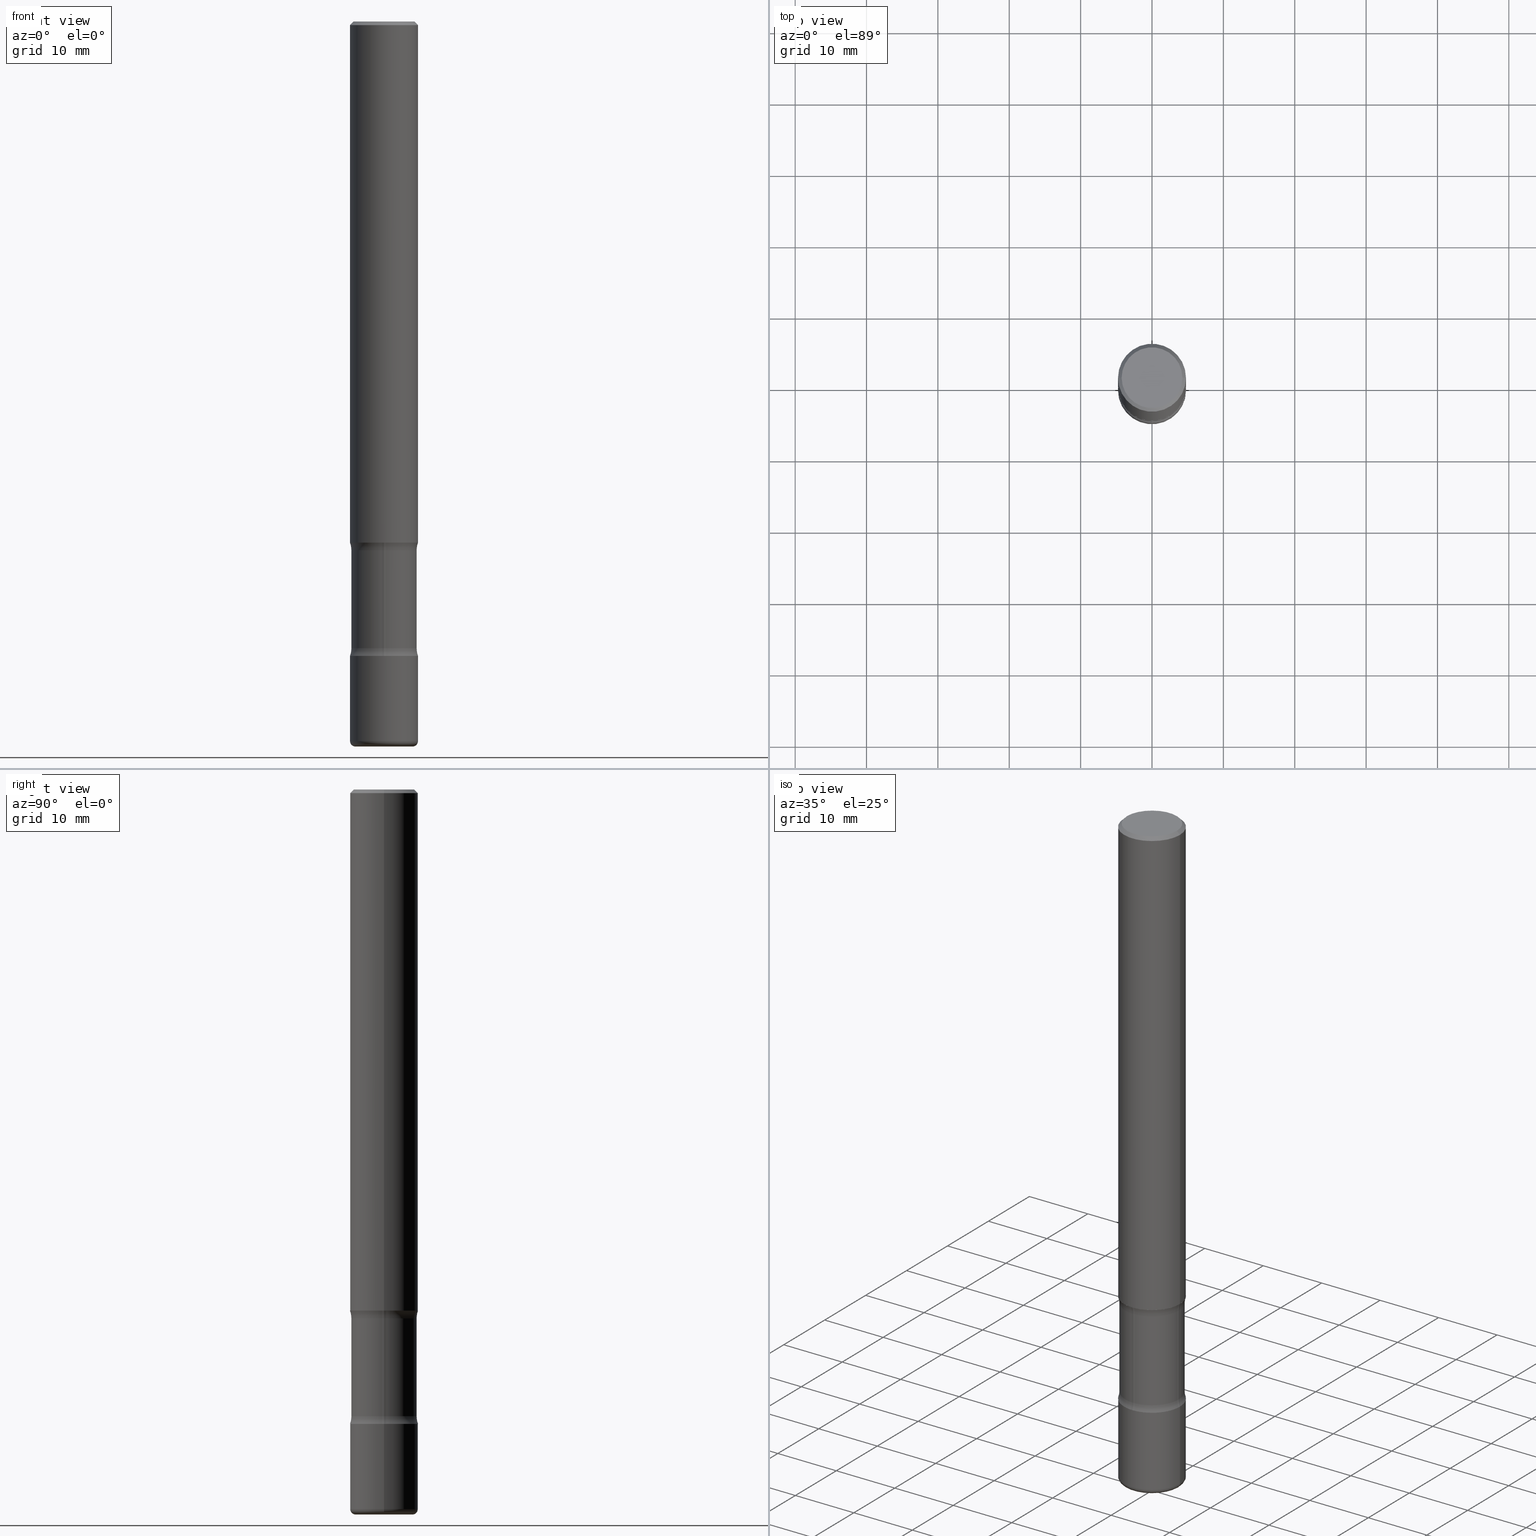
[diagram: canonical four-view strip — front | top / right | iso, engineering-drawing reading convention]
A machine part, canonical four-view strip (front | top / right | iso — engineering-drawing reading convention). The complete STEP part file that produces these views, byte-faithful:
ISO-10303-21;
HEADER;
FILE_DESCRIPTION (( 'STEP AP203' ),
    '1' );
FILE_NAME ('32826.STEP',
    '2023-03-11T07:04:34',
    ( '' ),
    ( '' ),
    'SwSTEP 2.0',
    'SolidWorks 2022',
    '' );
FILE_SCHEMA (( 'CONFIG_CONTROL_DESIGN' ));
ENDSEC;

DATA;
#1 = DIRECTION ( 'NONE',  ( 1.000000000000000000, -6.982962677686259611E-15, 0.000000000000000000 ) ) ;
#2 = CIRCLE ( 'NONE', #715, 0.1799999999999999933 ) ;
#3 = DIRECTION ( 'NONE',  ( -2.445468806185136597E-29, 3.491481338843145583E-15, 1.000000000000000000 ) ) ;
#4 = AXIS2_PLACEMENT_3D ( 'NONE', #59, #52, #310 ) ;
#5 = ADVANCED_BREP_SHAPE_REPRESENTATION ( '32826', ( #749, #210, #747, #500, #214 ), #727 ) ;
#6 = DIRECTION ( 'NONE',  ( -2.445468806185136597E-29, 3.491481338843145583E-15, 1.000000000000000000 ) ) ;
#7 = CARTESIAN_POINT ( 'NONE',  ( 1.169646248512448215E-15, 0.1674999999999997879, -5.848231242562260795E-16 ) ) ;
#8 = DIRECTION ( 'NONE',  ( -2.445468806185136597E-29, 3.491481338843145583E-15, 1.000000000000000000 ) ) ;
#9 = PLANE ( 'NONE',  #560 ) ;
#10 = DIRECTION ( 'NONE',  ( 1.000000000000000000, -6.982962677686266711E-15, 4.876176775795935793E-29 ) ) ;
#11 = CLOSED_SHELL ( 'NONE', ( #110, #657, #244, #693, #322, #567, #202, #53 ) ) ;
#12 = DIRECTION ( 'NONE',  ( -1.000000000000000000, 6.982962677686265922E-15, -4.883557194083112340E-29 ) ) ;
#13 = CARTESIAN_POINT ( 'NONE',  ( 7.030722817782267716E-29, -1.003800884917404311E-14, -2.875000000000000000 ) ) ;
#14 = LOCAL_TIME ( 2, 4, 34.00000000000000000, #33 ) ;
#15 = CARTESIAN_POINT ( 'NONE',  ( -0.1875000000000000278, -1.170841517102895815E-14, -3.500000000000000000 ) ) ;
#16 = ADVANCED_FACE ( 'NONE', ( #692 ), #182, .F. ) ;
#17 = DIRECTION ( 'NONE',  ( 1.000000000000000000, -6.982962677686266711E-15, 4.883557194083112340E-29 ) ) ;
#18 = ORIENTED_EDGE ( 'NONE', *, *, #454, .F. ) ;
#19 = PERSON_AND_ORGANIZATION ( #597, #170 ) ;
#20 = CARTESIAN_POINT ( 'NONE',  ( 0.1575000000000000289, -1.496099753694287407E-14, -3.970000000000000195 ) ) ;
#21 = DIRECTION ( 'NONE',  ( -2.445468806185136597E-29, 3.491481338843145583E-15, 1.000000000000000000 ) ) ;
#22 = VERTEX_POINT ( 'NONE', #754 ) ;
#23 = DIRECTION ( 'NONE',  ( 1.000000000000000000, -6.982962677686277755E-15, 0.000000000000000000 ) ) ;
#24 = CARTESIAN_POINT ( 'NONE',  ( 0.1874999999999999722, -1.352949018801718277E-14, -3.500000000000000000 ) ) ;
#25 = AXIS2_PLACEMENT_3D ( 'NONE', #73, #147, #31 ) ;
#26 = AXIS2_PLACEMENT_3D ( 'NONE', #250, #311, #744 ) ;
#27 = EDGE_LOOP ( 'NONE', ( #734, #284 ) ) ;
#28 = EDGE_CURVE ( 'NONE', #771, #273, #242, .T. ) ;
#29 = VECTOR ( 'NONE', #523, 39.37007874015748143 ) ;
#30 = DIRECTION ( 'NONE',  ( -2.445468806185136597E-29, 3.491481338843145583E-15, 1.000000000000000000 ) ) ;
#31 = DIRECTION ( 'NONE',  ( 1.000000000000000000, -6.982962677686263555E-15, 4.883557194083111219E-29 ) ) ;
#32 = EDGE_LOOP ( 'NONE', ( #156, #492, #680, #246 ) ) ;
#33 = COORDINATED_UNIVERSAL_TIME_OFFSET ( 5, 0, .BEHIND. ) ;
#34 = FACE_OUTER_BOUND ( 'NONE', #51, .T. ) ;
#35 = ORIENTED_EDGE ( 'NONE', *, *, #46, .T. ) ;
#36 = EDGE_CURVE ( 'NONE', #278, #609, #255, .T. ) ;
#37 = DIRECTION ( 'NONE',  ( 6.860497997771529985E-15, 1.000000000000000000, 0.000000000000000000 ) ) ;
#38 = VERTEX_POINT ( 'NONE', #699 ) ;
#39 = AXIS2_PLACEMENT_3D ( 'NONE', #381, #634, #270 ) ;
#40 = VECTOR ( 'NONE', #272, 39.37007874015748143 ) ;
#41 = CIRCLE ( 'NONE', #401, 0.1250000000000000555 ) ;
#42 = CIRCLE ( 'NONE', #626, 0.1799999999999999378 ) ;
#43 = FACE_OUTER_BOUND ( 'NONE', #618, .T. ) ;
#44 = ORIENTED_EDGE ( 'NONE', *, *, #575, .F. ) ;
#45 = ORIENTED_EDGE ( 'NONE', *, *, #732, .T. ) ;
#46 = EDGE_CURVE ( 'NONE', #116, #729, #624, .T. ) ;
#47 = DIRECTION ( 'NONE',  ( 6.982962677686265133E-15, 1.000000000000000000, -3.035386659626959526E-15 ) ) ;
#48 = ORIENTED_EDGE ( 'NONE', *, *, #409, .T. ) ;
#49 = CARTESIAN_POINT ( 'NONE',  ( 0.1875000000000000278, -1.309305502066175008E-15, 9.142831454617381013E-30 ) ) ;
#50 = CC_DESIGN_PERSON_AND_ORGANIZATION_ASSIGNMENT ( #496, #350, ( #723 ) ) ;
#51 = EDGE_LOOP ( 'NONE', ( #430, #513, #164, #746 ) ) ;
#52 = DIRECTION ( 'NONE',  ( 2.448389794294358426E-29, -3.487298317618421426E-15, -1.000000000000000000 ) ) ;
#53 = ADVANCED_FACE ( 'NONE', ( #757 ), #451, .T. ) ;
#54 = TOROIDAL_SURFACE ( 'NONE', #545, 0.3049999999999999933, 0.1250000000000000278 ) ;
#55 = AXIS2_PLACEMENT_3D ( 'NONE', #666, #603, #143 ) ;
#56 = CIRCLE ( 'NONE', #294, 0.1250000000000000000 ) ;
#57 = DIRECTION ( 'NONE',  ( 2.448389794294358146E-29, -3.487298317618421426E-15, -1.000000000000000000 ) ) ;
#58 = ORIENTED_EDGE ( 'NONE', *, *, #28, .F. ) ;
#59 = CARTESIAN_POINT ( 'NONE',  ( 7.135014249761037125E-29, -1.018690937394627965E-14, -2.917646805273079735 ) ) ;
#60 = CARTESIAN_POINT ( 'NONE',  ( -0.1799999999999999656, -8.759031924805863213E-15, -2.875000000000000000 ) ) ;
#61 = CARTESIAN_POINT ( 'NONE',  ( 7.135014249761037125E-29, -1.018690937394627965E-14, -2.917646805273079735 ) ) ;
#62 = APPLICATION_PROTOCOL_DEFINITION ( 'international standard', 'config_control_design', 1994, #465 ) ;
#63 = CARTESIAN_POINT ( 'NONE',  ( 1.725670919148285902E-27, 2.191517701039783065E-13, -4.000000000000000000 ) ) ;
#64 = CARTESIAN_POINT ( 'NONE',  ( 7.030722817782267716E-29, -1.003800884917404311E-14, -2.875000000000000000 ) ) ;
#65 = ORIENTED_EDGE ( 'NONE', *, *, #106, .F. ) ;
#66 = CIRCLE ( 'NONE', #519, 0.1249999999999999584 ) ;
#67 = DIRECTION ( 'NONE',  ( 2.445468806185136597E-29, -3.491481338843145583E-15, -1.000000000000000000 ) ) ;
#68 = AXIS2_PLACEMENT_3D ( 'NONE', #20, #276, #23 ) ;
#69 = ADVANCED_FACE ( 'NONE', ( #761 ), #167, .T. ) ;
#70 = ORIENTED_EDGE ( 'NONE', *, *, #515, .T. ) ;
#71 = CARTESIAN_POINT ( 'NONE',  ( -0.1874999999999999722, -1.088791705640082149E-14, -3.500000000000000000 ) ) ;
#72 = CARTESIAN_POINT ( 'NONE',  ( 9.781875224740547508E-29, -1.396592535537258391E-14, -4.000000000000000888 ) ) ;
#73 = CARTESIAN_POINT ( 'NONE',  ( 9.708511160554992872E-29, -1.386118091520728738E-14, -3.970000000000000195 ) ) ;
#74 = CARTESIAN_POINT ( 'NONE',  ( -0.1874999999999997780, 1.239475875289310330E-15, -0.02000000000000004205 ) ) ;
#75 = EDGE_CURVE ( 'NONE', #729, #116, #638, .T. ) ;
#76 = DIRECTION ( 'NONE',  ( -6.982962677686265133E-15, -1.000000000000000000, 0.000000000000000000 ) ) ;
#77 = CARTESIAN_POINT ( 'NONE',  ( -0.1575000000000000289, -1.268786691610376371E-14, -3.999999999999999556 ) ) ;
#78 = AXIS2_PLACEMENT_3D ( 'NONE', #803, #689, #758 ) ;
#79 = AXIS2_PLACEMENT_3D ( 'NONE', #63, #637, #319 ) ;
#80 = EDGE_LOOP ( 'NONE', ( #700, #541 ) ) ;
#81 = CALENDAR_DATE ( 2023, 11, 3 ) ;
#82 = LOCAL_TIME ( 2, 4, 34.00000000000000000, #455 ) ;
#83 = EDGE_CURVE ( 'NONE', #594, #189, #266, .T. ) ;
#84 = DIRECTION ( 'NONE',  ( 2.438088387897960049E-29, -3.491481338843145188E-15, -1.000000000000000000 ) ) ;
#85 = CARTESIAN_POINT ( 'NONE',  ( 8.454849389669208679E-29, -1.207128416117877279E-14, -3.457353194726919821 ) ) ;
#86 = ORIENTED_EDGE ( 'NONE', *, *, #349, .T. ) ;
#87 = FACE_OUTER_BOUND ( 'NONE', #382, .T. ) ;
#88 = DIRECTION ( 'NONE',  ( -2.445468806185136597E-29, 3.491481338843145583E-15, 1.000000000000000000 ) ) ;
#89 = ORIENTED_EDGE ( 'NONE', *, *, #363, .F. ) ;
#90 = DIMENSIONAL_EXPONENTS ( 1.000000000000000000, 0.000000000000000000, 0.000000000000000000, 0.000000000000000000, 0.000000000000000000, 0.000000000000000000, 0.000000000000000000 ) ;
#91 = FACE_OUTER_BOUND ( 'NONE', #633, .T. ) ;
#92 = DIRECTION ( 'NONE',  ( -2.445468806185136597E-29, 3.491481338843145583E-15, 1.000000000000000000 ) ) ;
#93 = AXIS2_PLACEMENT_3D ( 'NONE', #13, #326, #517 ) ;
#94 = AXIS2_PLACEMENT_3D ( 'NONE', #371, #682, #494 ) ;
#95 = ORIENTED_EDGE ( 'NONE', *, *, #409, .F. ) ;
#96 = AXIS2_PLACEMENT_3D ( 'NONE', #512, #314, #516 ) ;
#97 = PERSON_AND_ORGANIZATION_ROLE ( 'design_owner' ) ;
#98 = CARTESIAN_POINT ( 'NONE',  ( 8.559140821647976968E-29, -1.222018468595100934E-14, -3.500000000000000000 ) ) ;
#99 = ORIENTED_EDGE ( 'NONE', *, *, #171, .F. ) ;
#100 = DIRECTION ( 'NONE',  ( -2.445468806185136877E-29, 3.491481338843145188E-15, 1.000000000000000000 ) ) ;
#101 = EDGE_LOOP ( 'NONE', ( #561, #160, #209, #433 ) ) ;
#102 = CARTESIAN_POINT ( 'NONE',  ( 7.030722817782267716E-29, -1.003800884917404311E-14, -2.875000000000000000 ) ) ;
#103 = ORIENTED_EDGE ( 'NONE', *, *, #254, .T. ) ;
#104 = AXIS2_PLACEMENT_3D ( 'NONE', #132, #390, #10 ) ;
#105 = AXIS2_PLACEMENT_3D ( 'NONE', #546, #542, #47 ) ;
#106 = EDGE_CURVE ( 'NONE', #731, #273, #649, .T. ) ;
#107 = DIRECTION ( 'NONE',  ( -2.445468806185136877E-29, 3.491481338843145188E-15, 1.000000000000000000 ) ) ;
#108 = VERTEX_POINT ( 'NONE', #696 ) ;
#109 = CARTESIAN_POINT ( 'NONE',  ( 0.1874999999999998335, -1.517048641727346397E-14, -3.970000000000000195 ) ) ;
#110 = ADVANCED_FACE ( 'NONE', ( #191 ), #446, .T. ) ;
#111 = ORIENTED_EDGE ( 'NONE', *, *, #511, .F. ) ;
#112 = COORDINATED_UNIVERSAL_TIME_OFFSET ( 5, 0, .BEHIND. ) ;
#113 = FACE_OUTER_BOUND ( 'NONE', #790, .T. ) ;
#114 = ORIENTED_EDGE ( 'NONE', *, *, #161, .F. ) ;
#115 = AXIS2_PLACEMENT_3D ( 'NONE', #464, #92, #469 ) ;
#116 = VERTEX_POINT ( 'NONE', #122 ) ;
#117 = AXIS2_PLACEMENT_3D ( 'NONE', #125, #193, #308 ) ;
#118 = FACE_OUTER_BOUND ( 'NONE', #479, .T. ) ;
#119 = CARTESIAN_POINT ( 'NONE',  ( 4.890937612370283668E-31, -6.982962677686305168E-17, -0.02000000000000004205 ) ) ;
#120 = DIRECTION ( 'NONE',  ( -6.982962677686266711E-15, -1.000000000000000000, 3.491481338843145583E-15 ) ) ;
#121 = FACE_OUTER_BOUND ( 'NONE', #174, .T. ) ;
#122 = CARTESIAN_POINT ( 'NONE',  ( -0.1874999999999999722, -3.721651608425263776E-15, -2.875000000000000000 ) ) ;
#123 = EDGE_CURVE ( 'NONE', #38, #564, #557, .T. ) ;
#124 = VERTEX_POINT ( 'NONE', #71 ) ;
#125 = CARTESIAN_POINT ( 'NONE',  ( 4.890937612370283668E-31, -6.982962677686305168E-17, -0.02000000000000004205 ) ) ;
#126 = DIRECTION ( 'NONE',  ( -6.982962677686266711E-15, -1.000000000000000000, 3.491481338843145583E-15 ) ) ;
#127 = EDGE_CURVE ( 'NONE', #220, #124, #289, .T. ) ;
#128 = AXIS2_PLACEMENT_3D ( 'NONE', #525, #213, #334 ) ;
#129 = VECTOR ( 'NONE', #530, 39.37007874015748143 ) ;
#130 = DIRECTION ( 'NONE',  ( -2.445468806185136877E-29, 3.491481338843145188E-15, 1.000000000000000000 ) ) ;
#131 = APPROVAL_PERSON_ORGANIZATION ( #606, #780, #499 ) ;
#132 = CARTESIAN_POINT ( 'NONE',  ( 0.000000000000000000, 0.000000000000000000, 0.000000000000000000 ) ) ;
#133 = APPROVAL_ROLE ( '' ) ;
#134 = DIRECTION ( 'NONE',  ( -2.445468806185136597E-29, 3.491481338843145583E-15, 1.000000000000000000 ) ) ;
#135 = DIRECTION ( 'NONE',  ( 1.000000000000000000, -6.982962677686265133E-15, 0.000000000000000000 ) ) ;
#136 = APPROVAL_DATE_TIME ( #238, #780 ) ;
#137 = DIRECTION ( 'NONE',  ( -1.000000000000000000, 6.982962677686265922E-15, -4.883557194083112340E-29 ) ) ;
#138 = DIRECTION ( 'NONE',  ( 1.000000000000000000, -6.982962677686269077E-15, 0.000000000000000000 ) ) ;
#139 = PERSON_AND_ORGANIZATION ( #597, #170 ) ;
#140 = CLOSED_SHELL ( 'NONE', ( #592, #677, #69, #505, #340, #153 ) ) ;
#141 = FACE_OUTER_BOUND ( 'NONE', #800, .T. ) ;
#142 = TOROIDAL_SURFACE ( 'NONE', #614, 0.1575000000000000289, 0.02999999999999969705 ) ;
#143 = DIRECTION ( 'NONE',  ( 6.982962677686265922E-15, 1.000000000000000000, -2.913971193241880372E-15 ) ) ;
#144 = AXIS2_PLACEMENT_3D ( 'NONE', #391, #383, #645 ) ;
#145 = EDGE_LOOP ( 'NONE', ( #531, #35, #544, #232 ) ) ;
#146 = CARTESIAN_POINT ( 'NONE',  ( 8.454849389669208679E-29, -1.207128416117877279E-14, -3.457353194726919821 ) ) ;
#147 = DIRECTION ( 'NONE',  ( -2.445468806185136597E-29, 3.491481338843145583E-15, 1.000000000000000000 ) ) ;
#148 = ORIENTED_EDGE ( 'NONE', *, *, #171, .T. ) ;
#149 = CARTESIAN_POINT ( 'NONE',  ( -0.1874999999999998335, -1.252891328565710111E-14, -3.970000000000000195 ) ) ;
#150 = CARTESIAN_POINT ( 'NONE',  ( 8.454724818858109369E-29, -1.207146255367039571E-14, -3.457353194726919821 ) ) ;
#151 = ORIENTED_EDGE ( 'NONE', *, *, #493, .F. ) ;
#152 = DIRECTION ( 'NONE',  ( -2.445468806185136877E-29, 3.491481338843145188E-15, 1.000000000000000000 ) ) ;
#153 = ADVANCED_FACE ( 'NONE', ( #328 ), #576, .T. ) ;
#154 = CARTESIAN_POINT ( 'NONE',  ( 9.781696099958424164E-29, -1.393229641470176903E-14, -3.995154743233020334 ) ) ;
#155 = TOROIDAL_SURFACE ( 'NONE', #475, 0.3049999999999999378, 0.1250000000000000000 ) ;
#156 = ORIENTED_EDGE ( 'NONE', *, *, #629, .F. ) ;
#157 = VECTOR ( 'NONE', #595, 39.37007874015748143 ) ;
#158 = ORIENTED_EDGE ( 'NONE', *, *, #36, .F. ) ;
#159 = FACE_OUTER_BOUND ( 'NONE', #786, .T. ) ;
#160 = ORIENTED_EDGE ( 'NONE', *, *, #745, .T. ) ;
#161 = EDGE_CURVE ( 'NONE', #423, #609, #412, .T. ) ;
#162 = EDGE_LOOP ( 'NONE', ( #548, #725 ) ) ;
#163 = CARTESIAN_POINT ( 'NONE',  ( 7.133313203003872056E-29, -1.018934536972010884E-14, -2.917646805273079735 ) ) ;
#164 = ORIENTED_EDGE ( 'NONE', *, *, #736, .T. ) ;
#165 = DIRECTION ( 'NONE',  ( 6.982962677686265922E-15, 1.000000000000000000, -2.913971193241880372E-15 ) ) ;
#166 = ORIENTED_EDGE ( 'NONE', *, *, #336, .F. ) ;
#167 = CONICAL_SURFACE ( 'NONE', #688, 0.1874999999999997780, 0.7853981633974471688 ) ;
#168 = CIRCLE ( 'NONE', #706, 0.1799999999999999933 ) ;
#169 = CARTESIAN_POINT ( 'NONE',  ( 7.133313203003872056E-29, -1.018934536972010884E-14, -2.917646805273079735 ) ) ;
#170 = ORGANIZATION ( 'UNSPECIFIED', 'UNSPECIFIED', '' ) ;
#171 = EDGE_CURVE ( 'NONE', #335, #473, #358, .T. ) ;
#172 = ORIENTED_EDGE ( 'NONE', *, *, #532, .F. ) ;
#173 = CARTESIAN_POINT ( 'NONE',  ( -1.234889639598777555E-15, -0.1800000000000138989, -3.995154743233019889 ) ) ;
#174 = EDGE_LOOP ( 'NONE', ( #320, #554 ) ) ;
#175 = DIRECTION ( 'NONE',  ( 1.000000000000000000, -6.982962677686263555E-15, 4.883557194083111219E-29 ) ) ;
#176 = VERTEX_POINT ( 'NONE', #522 ) ;
#177 = APPLICATION_CONTEXT ( 'configuration controlled 3d designs of mechanical parts and assemblies' ) ;
#178 = DATE_AND_TIME ( #665, #777 ) ;
#179 = DIRECTION ( 'NONE',  ( 2.448389794294358146E-29, -3.487298317618421426E-15, -1.000000000000000000 ) ) ;
#180 = FACE_OUTER_BOUND ( 'NONE', #339, .T. ) ;
#181 = ADVANCED_FACE ( 'NONE', ( #180 ), #774, .T. ) ;
#182 = TOROIDAL_SURFACE ( 'NONE', #279, 0.3049999999999999933, 0.1250000000000000278 ) ;
#183 = AXIS2_PLACEMENT_3D ( 'NONE', #589, #285, #453 ) ;
#184 = AXIS2_PLACEMENT_3D ( 'NONE', #766, #137, #76 ) ;
#185 = CARTESIAN_POINT ( 'NONE',  ( 9.708511160554992872E-29, -1.386118091520728738E-14, -3.970000000000000195 ) ) ;
#186 = DIRECTION ( 'NONE',  ( -1.000000000000000000, 6.982962677686265133E-15, 0.000000000000000000 ) ) ;
#187 = APPLICATION_PROTOCOL_DEFINITION ( 'international standard', 'config_control_design', 1994, #177 ) ;
#188 = EDGE_CURVE ( 'NONE', #239, #124, #228, .T. ) ;
#189 = VERTEX_POINT ( 'NONE', #77 ) ;
#190 = CARTESIAN_POINT ( 'NONE',  ( 9.781875224740545266E-29, -1.396592535537258075E-14, -3.999999999999999556 ) ) ;
#191 = FACE_OUTER_BOUND ( 'NONE', #376, .T. ) ;
#192 = PRODUCT ( '32826', '32826', '', ( #621 ) ) ;
#193 = DIRECTION ( 'NONE',  ( -2.445468806185136597E-29, 3.491481338843145583E-15, 1.000000000000000000 ) ) ;
#194 = CARTESIAN_POINT ( 'NONE',  ( 4.890937612370283668E-31, -6.982962677686305168E-17, -0.02000000000000004205 ) ) ;
#195 = CC_DESIGN_PERSON_AND_ORGANIZATION_ASSIGNMENT ( #697, #642, ( #738 ) ) ;
#196 = PLANE ( 'NONE',  #462 ) ;
#197 = EDGE_CURVE ( 'NONE', #124, #239, #485, .T. ) ;
#198 = VECTOR ( 'NONE', #152, 39.37007874015748143 ) ;
#199 = DIRECTION ( 'NONE',  ( -2.445468806185136597E-29, 3.491481338843145583E-15, 1.000000000000000000 ) ) ;
#200 = APPROVAL_STATUS ( 'not_yet_approved' ) ;
#201 = CARTESIAN_POINT ( 'NONE',  ( 0.1575000000000000289, -1.506574197710816744E-14, -3.999999999999999556 ) ) ;
#202 = ADVANCED_FACE ( 'NONE', ( #34 ), #54, .F. ) ;
#203 = LINE ( 'NONE', #395, #40 ) ;
#204 = PERSON_AND_ORGANIZATION_ROLE ( 'creator' ) ;
#205 = FACE_OUTER_BOUND ( 'NONE', #225, .T. ) ;
#206 = DIRECTION ( 'NONE',  ( -1.000000000000000000, 7.105427357601001859E-15, 0.000000000000000000 ) ) ;
#207 = ORIENTED_EDGE ( 'NONE', *, *, #428, .T. ) ;
#208 = EDGE_CURVE ( 'NONE', #670, #459, #229, .T. ) ;
#209 = ORIENTED_EDGE ( 'NONE', *, *, #673, .T. ) ;
#210 = MANIFOLD_SOLID_BREP ( 'Body-Move/Copy2[2]', #140 ) ;
#211 = CARTESIAN_POINT ( 'NONE',  ( 0.1387500000000000955, -1.491781945256338221E-14, -4.000000000000000888 ) ) ;
#212 = VECTOR ( 'NONE', #100, 39.37007874015748143 ) ;
#213 = DIRECTION ( 'NONE',  ( -2.445468806185136597E-29, 3.491481338843145583E-15, 1.000000000000000000 ) ) ;
#214 = AXIS2_PLACEMENT_3D ( 'NONE', #367, #370, #793 ) ;
#215 = EDGE_CURVE ( 'NONE', #771, #365, #487, .T. ) ;
#216 = ORIENTED_EDGE ( 'NONE', *, *, #478, .F. ) ;
#217 = EDGE_CURVE ( 'NONE', #189, #620, #797, .T. ) ;
#218 = CARTESIAN_POINT ( 'NONE',  ( -0.1874999999999999167, 1.332267629550187257E-15, -9.223003294227943787E-30 ) ) ;
#219 = CARTESIAN_POINT ( 'NONE',  ( -0.1575000000000000289, -1.274207610638512978E-14, -3.970000000000000195 ) ) ;
#220 = VERTEX_POINT ( 'NONE', #596 ) ;
#221 = ADVANCED_FACE ( 'NONE', ( #658 ), #257, .F. ) ;
#222 = CARTESIAN_POINT ( 'NONE',  ( 8.559140821647976968E-29, -1.222018468595100934E-14, -3.500000000000000000 ) ) ;
#223 = DIRECTION ( 'NONE',  ( 6.982962677686265133E-15, 1.000000000000000000, -3.035386659626959132E-15 ) ) ;
#224 = ORIENTED_EDGE ( 'NONE', *, *, #267, .T. ) ;
#225 = EDGE_LOOP ( 'NONE', ( #48, #366, #605, #722 ) ) ;
#226 = EDGE_CURVE ( 'NONE', #508, #108, #168, .T. ) ;
#227 = DIRECTION ( 'NONE',  ( -2.445468806185136597E-29, 3.491481338843145583E-15, 1.000000000000000000 ) ) ;
#228 = CIRCLE ( 'NONE', #704, 0.1875000000000000278 ) ;
#229 = CIRCLE ( 'NONE', #360, 0.1875000000000000278 ) ;
#230 = ORIENTED_EDGE ( 'NONE', *, *, #123, .T. ) ;
#231 = AXIS2_PLACEMENT_3D ( 'NONE', #405, #656, #717 ) ;
#232 = ORIENTED_EDGE ( 'NONE', *, *, #123, .F. ) ;
#233 = CARTESIAN_POINT ( 'NONE',  ( 8.559140821647976968E-29, -1.222018468595100934E-14, -3.500000000000000000 ) ) ;
#234 = EDGE_CURVE ( 'NONE', #676, #273, #593, .T. ) ;
#235 = VERTEX_POINT ( 'NONE', #351 ) ;
#236 = CARTESIAN_POINT ( 'NONE',  ( 7.030722817782267716E-29, -1.003800884917404311E-14, -2.875000000000000000 ) ) ;
#237 = ORIENTED_EDGE ( 'NONE', *, *, #493, .T. ) ;
#238 = DATE_AND_TIME ( #298, #14 ) ;
#239 = VERTEX_POINT ( 'NONE', #24 ) ;
#240 = CARTESIAN_POINT ( 'NONE',  ( 7.135014249761037125E-29, -1.018690937394627965E-14, -2.917646805273079735 ) ) ;
#241 = ORIENTED_EDGE ( 'NONE', *, *, #283, .F. ) ;
#242 = CIRCLE ( 'NONE', #474, 0.1249999999999999584 ) ;
#243 = AXIS2_PLACEMENT_3D ( 'NONE', #85, #415, #783 ) ;
#244 = ADVANCED_FACE ( 'NONE', ( #768 ), #316, .F. ) ;
#245 = CC_DESIGN_APPROVAL ( #701, ( #600 ) ) ;
#246 = ORIENTED_EDGE ( 'NONE', *, *, #703, .F. ) ;
#247 = FACE_OUTER_BOUND ( 'NONE', #162, .T. ) ;
#248 = ORIENTED_EDGE ( 'NONE', *, *, #234, .F. ) ;
#249 = DIRECTION ( 'NONE',  ( 2.448389794294358426E-29, -3.487298317618421426E-15, -1.000000000000000000 ) ) ;
#250 = CARTESIAN_POINT ( 'NONE',  ( 8.559140821647976968E-29, -1.222018468595100934E-14, -3.500000000000000000 ) ) ;
#251 = EDGE_LOOP ( 'NONE', ( #411, #86, #627, #417 ) ) ;
#252 = APPROVAL_STATUS ( 'not_yet_approved' ) ;
#253 = PLANE ( 'NONE',  #663 ) ;
#254 = EDGE_CURVE ( 'NONE', #220, #676, #2, .T. ) ;
#255 = LINE ( 'NONE', #321, #304 ) ;
#256 = DIRECTION ( 'NONE',  ( 6.982962677686265922E-15, 1.000000000000000000, -2.913971193241880372E-15 ) ) ;
#257 = TOROIDAL_SURFACE ( 'NONE', #243, 0.3049999999999999933, 0.1250000000000000278 ) ;
#258 = DIRECTION ( 'NONE',  ( 1.000000000000000000, -6.982962677686261189E-15, 0.000000000000000000 ) ) ;
#259 = CARTESIAN_POINT ( 'NONE',  ( 7.030722817782267716E-29, -1.003800884917404311E-14, -2.875000000000000000 ) ) ;
#260 = DIRECTION ( 'NONE',  ( 0.7071067811865466846, -7.319954787623252890E-15, -0.7071067811865483499 ) ) ;
#261 = DIRECTION ( 'NONE',  ( 1.000000000000000000, -6.982962677686261189E-15, 0.000000000000000000 ) ) ;
#262 = PERSON_AND_ORGANIZATION ( #597, #170 ) ;
#263 = PLANE ( 'NONE',  #79 ) ;
#264 = DIRECTION ( 'NONE',  ( 1.000000000000000000, -6.982962677686261189E-15, 0.000000000000000000 ) ) ;
#265 = ORIENTED_EDGE ( 'NONE', *, *, #208, .T. ) ;
#266 = CIRCLE ( 'NONE', #460, 0.1575000000000000289 ) ;
#267 = EDGE_CURVE ( 'NONE', #273, #731, #292, .T. ) ;
#268 = DIRECTION ( 'NONE',  ( 6.982962677686265133E-15, 1.000000000000000000, -3.035386659626959526E-15 ) ) ;
#269 = AXIS2_PLACEMENT_3D ( 'NONE', #456, #712, #721 ) ;
#270 = DIRECTION ( 'NONE',  ( -1.000000000000000000, 7.105427357601008170E-15, 0.000000000000000000 ) ) ;
#271 = LINE ( 'NONE', #218, #387 ) ;
#272 = DIRECTION ( 'NONE',  ( -0.9993908270190957621, 6.856857904024558048E-15, -0.03489949670250085817 ) ) ;
#273 = VERTEX_POINT ( 'NONE', #472 ) ;
#274 = DATE_TIME_ROLE ( 'classification_date' ) ;
#275 = DESIGN_CONTEXT ( 'detailed design', #465, 'design' ) ;
#276 = DIRECTION ( 'NONE',  ( -6.982962677686266711E-15, -1.000000000000000000, 3.491481338843145583E-15 ) ) ;
#277 = CARTESIAN_POINT ( 'NONE',  ( 7.030722817782267716E-29, -1.003800884917404311E-14, -2.875000000000000000 ) ) ;
#278 = VERTEX_POINT ( 'NONE', #154 ) ;
#279 = AXIS2_PLACEMENT_3D ( 'NONE', #312, #568, #315 ) ;
#280 = CARTESIAN_POINT ( 'NONE',  ( 0.3049999999999999933, -1.420108777787308446E-14, -3.457353194726919821 ) ) ;
#281 = DIRECTION ( 'NONE',  ( -2.445468806185136597E-29, 3.491481338843145583E-15, 1.000000000000000000 ) ) ;
#282 = CIRCLE ( 'NONE', #184, 0.1250000000000000278 ) ;
#283 = EDGE_CURVE ( 'NONE', #278, #423, #203, .T. ) ;
#284 = ORIENTED_EDGE ( 'NONE', *, *, #549, .F. ) ;
#285 = DIRECTION ( 'NONE',  ( -2.445468806185136597E-29, 3.491481338843145583E-15, 1.000000000000000000 ) ) ;
#286 = EDGE_LOOP ( 'NONE', ( #781, #237, #792, #481 ) ) ;
#287 = DIRECTION ( 'NONE',  ( 7.105427357601001859E-15, 1.000000000000000000, -3.491481338843145583E-15 ) ) ;
#288 = VERTEX_POINT ( 'NONE', #457 ) ;
#289 = CIRCLE ( 'NONE', #39, 0.1250000000000000555 ) ;
#290 = DIRECTION ( 'NONE',  ( 1.000000000000000000, -6.860497997771530774E-15, 4.840850106859679430E-29 ) ) ;
#291 = CIRCLE ( 'NONE', #533, 0.1250000000000000278 ) ;
#292 = CIRCLE ( 'NONE', #115, 0.1799999999999999378 ) ;
#293 = VERTEX_POINT ( 'NONE', #713 ) ;
#294 = AXIS2_PLACEMENT_3D ( 'NONE', #529, #12, #463 ) ;
#295 = FACE_OUTER_BOUND ( 'NONE', #348, .T. ) ;
#296 = EDGE_CURVE ( 'NONE', #235, #288, #414, .T. ) ;
#297 = ORIENTED_EDGE ( 'NONE', *, *, #454, .T. ) ;
#298 = CALENDAR_DATE ( 2023, 11, 3 ) ;
#299 = CARTESIAN_POINT ( 'NONE',  ( -0.1674999999999997879, 1.204561061900879272E-15, -8.301862719484101980E-30 ) ) ;
#300 = EDGE_LOOP ( 'NONE', ( #148, #489 ) ) ;
#301 = ADVANCED_FACE ( 'NONE', ( #402 ), #654, .T. ) ;
#302 = LINE ( 'NONE', #49, #332 ) ;
#303 = ORIENTED_EDGE ( 'NONE', *, *, #83, .F. ) ;
#304 = VECTOR ( 'NONE', #631, 39.37007874015748143 ) ;
#305 = CONICAL_SURFACE ( 'NONE', #787, 1127.411546571484223, 1.535889741755010141 ) ;
#306 = EDGE_CURVE ( 'NONE', #365, #771, #504, .T. ) ;
#307 = DIRECTION ( 'NONE',  ( 2.448389794294358426E-29, -3.487298317618421426E-15, -1.000000000000000000 ) ) ;
#308 = DIRECTION ( 'NONE',  ( 1.000000000000000000, -6.982962677686265133E-15, 0.000000000000000000 ) ) ;
#309 = ORIENTED_EDGE ( 'NONE', *, *, #604, .T. ) ;
#310 = DIRECTION ( 'NONE',  ( 6.982962677686266711E-15, 1.000000000000000000, -3.487298317618421426E-15 ) ) ;
#311 = DIRECTION ( 'NONE',  ( -2.445468806185136597E-29, 3.491481338843145583E-15, 1.000000000000000000 ) ) ;
#312 = CARTESIAN_POINT ( 'NONE',  ( 8.454849389669208679E-29, -1.207128416117877279E-14, -3.457353194726919821 ) ) ;
#313 = DATE_AND_TIME ( #491, #317 ) ;
#314 = DIRECTION ( 'NONE',  ( 2.448389794294358426E-29, -3.487298317618421426E-15, -1.000000000000000000 ) ) ;
#315 = DIRECTION ( 'NONE',  ( 6.982962677686266711E-15, 1.000000000000000000, -3.487298317618421426E-15 ) ) ;
#316 = TOROIDAL_SURFACE ( 'NONE', #690, 0.3049999999999999378, 0.1250000000000000000 ) ;
#317 = LOCAL_TIME ( 2, 4, 34.00000000000000000, #801 ) ;
#318 = CC_DESIGN_SECURITY_CLASSIFICATION ( #600, ( #738 ) ) ;
#319 = DIRECTION ( 'NONE',  ( 1.000000000000000000, -6.982962677686265922E-15, 4.876176775795935793E-29 ) ) ;
#320 = ORIENTED_EDGE ( 'NONE', *, *, #755, .T. ) ;
#321 = CARTESIAN_POINT ( 'NONE',  ( 1.671181708709870273E-17, -1.394900823178876908E-14, -3.995154743233020334 ) ) ;
#322 = ADVANCED_FACE ( 'NONE', ( #247 ), #671, .T. ) ;
#323 = CALENDAR_DATE ( 2023, 11, 3 ) ;
#324 = DIRECTION ( 'NONE',  ( -6.982962677686265922E-15, -1.000000000000000000, 3.487298317618421426E-15 ) ) ;
#325 = ORIENTED_EDGE ( 'NONE', *, *, #46, .F. ) ;
#326 = DIRECTION ( 'NONE',  ( -2.445468806185136597E-29, 3.491481338843145583E-15, 1.000000000000000000 ) ) ;
#327 = DIRECTION ( 'NONE',  ( -1.000000000000000000, 6.982962677686265922E-15, -4.876176775795935793E-29 ) ) ;
#328 = FACE_OUTER_BOUND ( 'NONE', #145, .T. ) ;
#329 = CC_DESIGN_PERSON_AND_ORGANIZATION_ASSIGNMENT ( #555, #97, ( #192 ) ) ;
#330 = CLOSED_SHELL ( 'NONE', ( #389, #449, #404, #538, #181, #301, #720, #482 ) ) ;
#331 = ADVANCED_FACE ( 'NONE', ( #558 ), #418, .T. ) ;
#332 = VECTOR ( 'NONE', #107, 39.37007874015748143 ) ;
#333 = CARTESIAN_POINT ( 'NONE',  ( 1.256933281983625353E-15, 0.1799999999999860323, -3.995154743233021222 ) ) ;
#334 = DIRECTION ( 'NONE',  ( 1.000000000000000000, -6.982962677686261189E-15, 0.000000000000000000 ) ) ;
#335 = VERTEX_POINT ( 'NONE', #299 ) ;
#336 = EDGE_CURVE ( 'NONE', #22, #288, #424, .T. ) ;
#337 = CARTESIAN_POINT ( 'NONE',  ( 0.1875000000000000278, -1.134731435124021811E-14, -2.875000000000000000 ) ) ;
#338 = CARTESIAN_POINT ( 'NONE',  ( 8.454849389669208679E-29, -1.207128416117877279E-14, -3.457353194726919821 ) ) ;
#339 = EDGE_LOOP ( 'NONE', ( #543, #480, #45, #151 ) ) ;
#340 = ADVANCED_FACE ( 'NONE', ( #610 ), #354, .F. ) ;
#341 = DIRECTION ( 'NONE',  ( 1.000000000000000000, -6.982962677686261189E-15, 0.000000000000000000 ) ) ;
#342 = ORIENTED_EDGE ( 'NONE', *, *, #703, .T. ) ;
#343 = LINE ( 'NONE', #468, #198 ) ;
#344 = CC_DESIGN_DATE_AND_TIME_ASSIGNMENT ( #178, #375, ( #723 ) ) ;
#345 = VECTOR ( 'NONE', #130, 39.37007874015748143 ) ;
#346 = CARTESIAN_POINT ( 'NONE',  ( 7.135014249761037125E-29, -1.018690937394627965E-14, -2.917646805273079735 ) ) ;
#347 = LOCAL_TIME ( 2, 4, 34.00000000000000000, #635 ) ;
#348 = EDGE_LOOP ( 'NONE', ( #590, #373, #650, #470 ) ) ;
#349 = EDGE_CURVE ( 'NONE', #293, #508, #291, .T. ) ;
#350 = PERSON_AND_ORGANIZATION_ROLE ( 'creator' ) ;
#351 = CARTESIAN_POINT ( 'NONE',  ( 1.309305502066245217E-15, 0.1874999999999899525, -2.875000000000000444 ) ) ;
#352 = ORIENTED_EDGE ( 'NONE', *, *, #467, .F. ) ;
#353 = EDGE_CURVE ( 'NONE', #393, #459, #302, .T. ) ;
#354 = PLANE ( 'NONE',  #461 ) ;
#355 = ORIENTED_EDGE ( 'NONE', *, *, #736, .F. ) ;
#356 = ORIENTED_EDGE ( 'NONE', *, *, #127, .T. ) ;
#357 = EDGE_CURVE ( 'NONE', #293, #176, #750, .T. ) ;
#358 = CIRCLE ( 'NONE', #104, 0.1674999999999997879 ) ;
#359 = DIRECTION ( 'NONE',  ( 1.000000000000000000, -6.860497997771530774E-15, 4.840850106859679430E-29 ) ) ;
#360 = AXIS2_PLACEMENT_3D ( 'NONE', #98, #88, #341 ) ;
#361 = CIRCLE ( 'NONE', #231, 0.1799999999999999933 ) ;
#362 = ORIENTED_EDGE ( 'NONE', *, *, #161, .T. ) ;
#363 = EDGE_CURVE ( 'NONE', #729, #564, #368, .T. ) ;
#364 = DIRECTION ( 'NONE',  ( 2.448389794294358426E-29, -3.487298317618421426E-15, -1.000000000000000000 ) ) ;
#365 = VERTEX_POINT ( 'NONE', #799 ) ;
#366 = ORIENTED_EDGE ( 'NONE', *, *, #442, .T. ) ;
#367 = CARTESIAN_POINT ( 'NONE',  ( 0.000000000000000000, 0.000000000000000000, 0.000000000000000000 ) ) ;
#368 = LINE ( 'NONE', #794, #212 ) ;
#369 = ORIENTED_EDGE ( 'NONE', *, *, #755, .F. ) ;
#370 = DIRECTION ( 'NONE',  ( 0.000000000000000000, 0.000000000000000000, 1.000000000000000000 ) ) ;
#371 = CARTESIAN_POINT ( 'NONE',  ( 1.060483257565666710E-27, -1.514089034618338686E-13, -43.36523348339049733 ) ) ;
#372 = CC_DESIGN_PERSON_AND_ORGANIZATION_ASSIGNMENT ( #139, #204, ( #738 ) ) ;
#373 = ORIENTED_EDGE ( 'NONE', *, *, #336, .T. ) ;
#374 = AXIS2_PLACEMENT_3D ( 'NONE', #163, #422, #685 ) ;
#375 = DATE_TIME_ROLE ( 'creation_date' ) ;
#376 = EDGE_LOOP ( 'NONE', ( #207, #297, #466, #248 ) ) ;
#377 = LINE ( 'NONE', #60, #345 ) ;
#378 = DIRECTION ( 'NONE',  ( 2.445468806185136597E-29, -3.491481338843145583E-15, -1.000000000000000000 ) ) ;
#379 = CARTESIAN_POINT ( 'NONE',  ( 8.559140821647976968E-29, -1.222018468595100934E-14, -3.500000000000000000 ) ) ;
#380 = DIRECTION ( 'NONE',  ( 1.000000000000000000, -6.982962677686265922E-15, 4.876176775795935793E-29 ) ) ;
#381 = CARTESIAN_POINT ( 'NONE',  ( -0.3049999999999999933, -9.904128817110467670E-15, -3.457353194726919821 ) ) ;
#382 = EDGE_LOOP ( 'NONE', ( #397, #662, #537, #224 ) ) ;
#383 = DIRECTION ( 'NONE',  ( 2.438088387897960049E-29, -3.491481338843145188E-15, -1.000000000000000000 ) ) ;
#384 = CARTESIAN_POINT ( 'NONE',  ( 7.030722817782267716E-29, -1.003800884917404311E-14, -2.875000000000000000 ) ) ;
#385 = AXIS2_PLACEMENT_3D ( 'NONE', #194, #639, #135 ) ;
#386 = AXIS2_PLACEMENT_3D ( 'NONE', #439, #3, #380 ) ;
#387 = VECTOR ( 'NONE', #394, 39.37007874015748143 ) ;
#388 = FACE_OUTER_BOUND ( 'NONE', #784, .T. ) ;
#389 = ADVANCED_FACE ( 'NONE', ( #43 ), #762, .F. ) ;
#390 = DIRECTION ( 'NONE',  ( -2.445468806185136597E-29, 3.491481338843145583E-15, 1.000000000000000000 ) ) ;
#391 = CARTESIAN_POINT ( 'NONE',  ( 8.559140821647976968E-29, -1.222018468595100934E-14, -3.500000000000000000 ) ) ;
#392 = CARTESIAN_POINT ( 'NONE',  ( 0.000000000000000000, 0.000000000000000000, 0.000000000000000000 ) ) ;
#393 = VERTEX_POINT ( 'NONE', #109 ) ;
#394 = DIRECTION ( 'NONE',  ( -2.445468806185136877E-29, 3.491481338843145188E-15, 1.000000000000000000 ) ) ;
#395 = CARTESIAN_POINT ( 'NONE',  ( -1.671181708690329941E-17, -1.394900823178876908E-14, -3.995154743233020334 ) ) ;
#396 = DATE_AND_TIME ( #323, #82 ) ;
#397 = ORIENTED_EDGE ( 'NONE', *, *, #407, .F. ) ;
#398 = AXIS2_PLACEMENT_3D ( 'NONE', #410, #21, #718 ) ;
#399 = CIRCLE ( 'NONE', #534, 0.1875000000000000278 ) ;
#400 = DIRECTION ( 'NONE',  ( -2.445468806185136597E-29, 3.491481338843145583E-15, 1.000000000000000000 ) ) ;
#401 = AXIS2_PLACEMENT_3D ( 'NONE', #280, #120, #1 ) ;
#402 = FACE_OUTER_BOUND ( 'NONE', #286, .T. ) ;
#403 = ORIENTED_EDGE ( 'NONE', *, *, #636, .T. ) ;
#404 = ADVANCED_FACE ( 'NONE', ( #159 ), #142, .T. ) ;
#405 = CARTESIAN_POINT ( 'NONE',  ( 8.454724818858109369E-29, -1.207146255367039571E-14, -3.457353194726919821 ) ) ;
#406 = VERTEX_POINT ( 'NONE', #552 ) ;
#407 = EDGE_CURVE ( 'NONE', #365, #731, #66, .T. ) ;
#408 = LINE ( 'NONE', #333, #29 ) ;
#409 = EDGE_CURVE ( 'NONE', #406, #22, #726, .T. ) ;
#410 = CARTESIAN_POINT ( 'NONE',  ( 0.000000000000000000, 0.000000000000000000, 0.000000000000000000 ) ) ;
#411 = ORIENTED_EDGE ( 'NONE', *, *, #357, .F. ) ;
#412 = CIRCLE ( 'NONE', #714, 0.1387500000000000677 ) ;
#413 = DIRECTION ( 'NONE',  ( 1.000000000000000000, -6.982962677686264344E-15, 4.883557194083112340E-29 ) ) ;
#414 = CIRCLE ( 'NONE', #55, 0.1875000000000000278 ) ;
#415 = DIRECTION ( 'NONE',  ( 2.448389794294358426E-29, -3.487298317618421426E-15, -1.000000000000000000 ) ) ;
#416 = CIRCLE ( 'NONE', #788, 0.1875000000000000278 ) ;
#417 = ORIENTED_EDGE ( 'NONE', *, *, #646, .F. ) ;
#418 = CYLINDRICAL_SURFACE ( 'NONE', #105, 0.1799999999999999656 ) ;
#419 = ORIENTED_EDGE ( 'NONE', *, *, #296, .T. ) ;
#420 = ADVANCED_FACE ( 'NONE', ( #295 ), #155, .F. ) ;
#421 = EDGE_LOOP ( 'NONE', ( #362, #70 ) ) ;
#422 = DIRECTION ( 'NONE',  ( 2.448389794294358426E-29, -3.487298317618421426E-15, -1.000000000000000000 ) ) ;
#423 = VERTEX_POINT ( 'NONE', #785 ) ;
#424 = CIRCLE ( 'NONE', #586, 0.1250000000000000000 ) ;
#425 = VECTOR ( 'NONE', #260, 39.37007874015748143 ) ;
#426 = ORIENTED_EDGE ( 'NONE', *, *, #75, .F. ) ;
#427 =( LENGTH_UNIT ( ) NAMED_UNIT ( * ) SI_UNIT ( $, .METRE. ) );
#428 = EDGE_CURVE ( 'NONE', #676, #220, #675, .T. ) ;
#429 = CYLINDRICAL_SURFACE ( 'NONE', #386, 0.1875000000000000278 ) ;
#430 = ORIENTED_EDGE ( 'NONE', *, *, #127, .F. ) ;
#431 = APPROVAL ( #562, 'UNSPECIFIED' ) ;
#432 = CARTESIAN_POINT ( 'NONE',  ( 9.708511160554992872E-29, -1.386118091520728738E-14, -3.970000000000000195 ) ) ;
#433 = ORIENTED_EDGE ( 'NONE', *, *, #226, .F. ) ;
#434 =( CONVERSION_BASED_UNIT ( 'INCH', #735 ) LENGTH_UNIT ( ) NAMED_UNIT ( #90 ) );
#435 = DIRECTION ( 'NONE',  ( 1.000000000000000000, -6.982962677686261189E-15, 0.000000000000000000 ) ) ;
#436 = CARTESIAN_POINT ( 'NONE',  ( 9.781875224740545266E-29, -1.396592535537258075E-14, -3.999999999999999556 ) ) ;
#437 = CIRCLE ( 'NONE', #78, 0.1875000000000000278 ) ;
#438 = AXIS2_PLACEMENT_3D ( 'NONE', #72, #134, #435 ) ;
#439 = CARTESIAN_POINT ( 'NONE',  ( 0.000000000000000000, 0.000000000000000000, 0.000000000000000000 ) ) ;
#440 = DIRECTION ( 'NONE',  ( 1.000000000000000000, -6.982962677686270655E-15, 0.000000000000000000 ) ) ;
#441 = PERSON_AND_ORGANIZATION_ROLE ( 'classification_officer' ) ;
#442 = EDGE_CURVE ( 'NONE', #22, #508, #739, .T. ) ;
#443 = DIRECTION ( 'NONE',  ( 1.000000000000000000, -6.982962677686261189E-15, 0.000000000000000000 ) ) ;
#444 = DIRECTION ( 'NONE',  ( 1.000000000000000000, -6.982962677686265922E-15, 4.876176775795935793E-29 ) ) ;
#445 = DIRECTION ( 'NONE',  ( -1.000000000000000000, 6.982962677686265922E-15, -4.876176775795935793E-29 ) ) ;
#446 = CYLINDRICAL_SURFACE ( 'NONE', #93, 0.1799999999999999656 ) ;
#447 = AXIS2_PLACEMENT_3D ( 'NONE', #190, #694, #258 ) ;
#448 = AXIS2_PLACEMENT_3D ( 'NONE', #222, #84, #327 ) ;
#449 = ADVANCED_FACE ( 'NONE', ( #113 ), #429, .T. ) ;
#450 = CARTESIAN_POINT ( 'NONE',  ( 0.1875000000000000278, -1.352949018801718277E-14, -3.500000000000000000 ) ) ;
#451 = CYLINDRICAL_SURFACE ( 'NONE', #585, 0.1799999999999999656 ) ;
#452 = CYLINDRICAL_SURFACE ( 'NONE', #678, 0.1799999999999999656 ) ;
#453 = DIRECTION ( 'NONE',  ( 1.000000000000000000, -6.982962677686261189E-15, 0.000000000000000000 ) ) ;
#454 = EDGE_CURVE ( 'NONE', #220, #731, #377, .T. ) ;
#455 = COORDINATED_UNIVERSAL_TIME_OFFSET ( 5, 0, .BEHIND. ) ;
#456 = CARTESIAN_POINT ( 'NONE',  ( 4.890937612370283668E-31, -6.982962677686305168E-17, -0.02000000000000004205 ) ) ;
#457 = CARTESIAN_POINT ( 'NONE',  ( -1.286343374582091762E-15, -0.1875000000000100198, -2.874999999999999112 ) ) ;
#458 = ORIENTED_EDGE ( 'NONE', *, *, #283, .T. ) ;
#459 = VERTEX_POINT ( 'NONE', #450 ) ;
#460 = AXIS2_PLACEMENT_3D ( 'NONE', #436, #579, #503 ) ;
#461 = AXIS2_PLACEMENT_3D ( 'NONE', #102, #476, #728 ) ;
#462 = AXIS2_PLACEMENT_3D ( 'NONE', #756, #760, #324 ) ;
#463 = DIRECTION ( 'NONE',  ( -6.982962677686265133E-15, -1.000000000000000000, 0.000000000000000000 ) ) ;
#464 = CARTESIAN_POINT ( 'NONE',  ( 7.135014249761037125E-29, -1.018690937394627965E-14, -2.917646805273079735 ) ) ;
#465 = APPLICATION_CONTEXT ( 'configuration controlled 3d designs of mechanical parts and assemblies' ) ;
#466 = ORIENTED_EDGE ( 'NONE', *, *, #267, .F. ) ;
#467 = EDGE_CURVE ( 'NONE', #459, #670, #737, .T. ) ;
#468 = CARTESIAN_POINT ( 'NONE',  ( -0.1875000000000000278, 1.332267629550188046E-15, -9.223003294227947991E-30 ) ) ;
#469 = DIRECTION ( 'NONE',  ( 1.000000000000000000, -6.982962677686270655E-15, 0.000000000000000000 ) ) ;
#470 = ORIENTED_EDGE ( 'NONE', *, *, #604, .F. ) ;
#471 = CARTESIAN_POINT ( 'NONE',  ( 9.771472641576149024E-29, -1.394693698898830239E-14, -3.995154743233020334 ) ) ;
#472 = CARTESIAN_POINT ( 'NONE',  ( 0.1799999999999999378, -1.144384265592980798E-14, -2.917646805273079735 ) ) ;
#473 = VERTEX_POINT ( 'NONE', #566 ) ;
#474 = AXIS2_PLACEMENT_3D ( 'NONE', #570, #126, #806 ) ;
#475 = AXIS2_PLACEMENT_3D ( 'NONE', #240, #364, #619 ) ;
#476 = DIRECTION ( 'NONE',  ( -2.438088387897960049E-29, 3.491481338843145188E-15, 1.000000000000000000 ) ) ;
#477 = CC_DESIGN_APPROVAL ( #780, ( #738 ) ) ;
#478 = EDGE_CURVE ( 'NONE', #189, #594, #559, .T. ) ;
#479 = EDGE_LOOP ( 'NONE', ( #303, #216 ) ) ;
#480 = ORIENTED_EDGE ( 'NONE', *, *, #478, .T. ) ;
#481 = ORIENTED_EDGE ( 'NONE', *, *, #208, .F. ) ;
#482 = ADVANCED_FACE ( 'NONE', ( #388 ), #305, .F. ) ;
#483 = DIRECTION ( 'NONE',  ( 6.860497997771529985E-15, 1.000000000000000000, 0.000000000000000000 ) ) ;
#484 = ORIENTED_EDGE ( 'NONE', *, *, #349, .F. ) ;
#485 = CIRCLE ( 'NONE', #128, 0.1875000000000000278 ) ;
#486 = DIRECTION ( 'NONE',  ( 1.000000000000000000, -6.982962677686269077E-15, 0.000000000000000000 ) ) ;
#487 = CIRCLE ( 'NONE', #183, 0.1875000000000000278 ) ;
#488 = TOROIDAL_SURFACE ( 'NONE', #4, 0.3049999999999999378, 0.1250000000000000000 ) ;
#489 = ORIENTED_EDGE ( 'NONE', *, *, #629, .T. ) ;
#490 = ADVANCED_FACE ( 'NONE', ( #563 ), #253, .F. ) ;
#491 = CALENDAR_DATE ( 2023, 11, 3 ) ;
#492 = ORIENTED_EDGE ( 'NONE', *, *, #532, .T. ) ;
#493 = EDGE_CURVE ( 'NONE', #620, #393, #437, .T. ) ;
#494 = DIRECTION ( 'NONE',  ( -1.000000000000000000, 6.982962677686265922E-15, 0.000000000000000000 ) ) ;
#495 = ORIENTED_EDGE ( 'NONE', *, *, #646, .T. ) ;
#496 = PERSON_AND_ORGANIZATION ( #597, #170 ) ;
#497 = CARTESIAN_POINT ( 'NONE',  ( -1.260616507090433870E-15, -0.1800000000000120670, -3.457353194726919376 ) ) ;
#498 = ORIENTED_EDGE ( 'NONE', *, *, #75, .T. ) ;
#499 = APPROVAL_ROLE ( '' ) ;
#500 = MANIFOLD_SOLID_BREP ( 'Body-Move/Copy2[4]', #584 ) ;
#501 = CARTESIAN_POINT ( 'NONE',  ( 7.030722817782267716E-29, -1.003800884917404311E-14, -2.875000000000000000 ) ) ;
#502 = AXIS2_PLACEMENT_3D ( 'NONE', #392, #6, #444 ) ;
#503 = DIRECTION ( 'NONE',  ( 1.000000000000000000, -6.982962677686261189E-15, 0.000000000000000000 ) ) ;
#504 = CIRCLE ( 'NONE', #752, 0.1875000000000000278 ) ;
#505 = ADVANCED_FACE ( 'NONE', ( #574 ), #9, .F. ) ;
#506 = AXIS2_PLACEMENT_3D ( 'NONE', #146, #778, #413 ) ;
#507 = CARTESIAN_POINT ( 'NONE',  ( 0.1874999999999999722, -1.134731435124021811E-14, -2.875000000000000000 ) ) ;
#508 = VERTEX_POINT ( 'NONE', #497 ) ;
#509 = CARTESIAN_POINT ( 'NONE',  ( 1.060483257565666710E-27, -1.514089034618338686E-13, -43.36523348339049733 ) ) ;
#510 = DIRECTION ( 'NONE',  ( -2.445468806185136597E-29, 3.491481338843145583E-15, 1.000000000000000000 ) ) ;
#511 = EDGE_CURVE ( 'NONE', #393, #620, #416, .T. ) ;
#512 = CARTESIAN_POINT ( 'NONE',  ( 7.028897200214004458E-29, -1.004062323743949521E-14, -2.875000000000000000 ) ) ;
#513 = ORIENTED_EDGE ( 'NONE', *, *, #428, .F. ) ;
#514 = DIRECTION ( 'NONE',  ( -2.445468806185136597E-29, 3.491481338843145583E-15, 1.000000000000000000 ) ) ;
#515 = EDGE_CURVE ( 'NONE', #609, #423, #547, .T. ) ;
#516 = DIRECTION ( 'NONE',  ( 6.982962677686265922E-15, 1.000000000000000000, -2.913971193241880372E-15 ) ) ;
#517 = DIRECTION ( 'NONE',  ( 1.000000000000000000, -6.982962677686269866E-15, 0.000000000000000000 ) ) ;
#518 = DATE_AND_TIME ( #81, #347 ) ;
#519 = AXIS2_PLACEMENT_3D ( 'NONE', #625, #550, #741 ) ;
#520 = TOROIDAL_SURFACE ( 'NONE', #691, 0.3049999999999999378, 0.1250000000000000000 ) ;
#521 = DIRECTION ( 'NONE',  ( 2.448389794294358426E-29, -3.487298317618421426E-15, -1.000000000000000000 ) ) ;
#522 = CARTESIAN_POINT ( 'NONE',  ( 1.309305502066260402E-15, 0.1874999999999877875, -3.500000000000000444 ) ) ;
#523 = DIRECTION ( 'NONE',  ( 2.448389794294358146E-29, -3.487298317618421426E-15, -1.000000000000000000 ) ) ;
#524 = ADVANCED_FACE ( 'NONE', ( #121 ), #196, .F. ) ;
#525 = CARTESIAN_POINT ( 'NONE',  ( 8.559140821647976968E-29, -1.222018468595100934E-14, -3.500000000000000000 ) ) ;
#526 = PRODUCT_DEFINITION_SHAPE ( 'NONE', 'NONE',  #723 ) ;
#527 = ORIENTED_EDGE ( 'NONE', *, *, #668, .T. ) ;
#528 = EDGE_LOOP ( 'NONE', ( #166, #95, #309, #419 ) ) ;
#529 = CARTESIAN_POINT ( 'NONE',  ( 2.129803616694382265E-15, 0.3049999999999897793, -2.917646805273081068 ) ) ;
#530 = DIRECTION ( 'NONE',  ( -2.445468806185136877E-29, 3.491481338843145188E-15, 1.000000000000000000 ) ) ;
#531 = ORIENTED_EDGE ( 'NONE', *, *, #668, .F. ) ;
#532 = EDGE_CURVE ( 'NONE', #473, #564, #577, .T. ) ;
#533 = AXIS2_PLACEMENT_3D ( 'NONE', #730, #359, #37 ) ;
#534 = AXIS2_PLACEMENT_3D ( 'NONE', #379, #249, #256 ) ;
#535 = DIRECTION ( 'NONE',  ( 1.000000000000000000, -6.982962677686266711E-15, 4.876176775795935793E-29 ) ) ;
#536 = CARTESIAN_POINT ( 'NONE',  ( 0.1799999999999999656, -1.129494213115757143E-14, -2.875000000000000000 ) ) ;
#537 = ORIENTED_EDGE ( 'NONE', *, *, #28, .T. ) ;
#538 = ADVANCED_FACE ( 'NONE', ( #118, #630 ), #263, .F. ) ;
#539 = CARTESIAN_POINT ( 'NONE',  ( 7.135014249761037125E-29, -1.018690937394627965E-14, -2.917646805273079735 ) ) ;
#540 = DIRECTION ( 'NONE',  ( -2.445468806185136597E-29, 3.491481338843145583E-15, 1.000000000000000000 ) ) ;
#541 = ORIENTED_EDGE ( 'NONE', *, *, #197, .F. ) ;
#542 = DIRECTION ( 'NONE',  ( 2.448389794294358426E-29, -3.487298317618421426E-15, -1.000000000000000000 ) ) ;
#543 = ORIENTED_EDGE ( 'NONE', *, *, #217, .F. ) ;
#544 = ORIENTED_EDGE ( 'NONE', *, *, #363, .T. ) ;
#545 = AXIS2_PLACEMENT_3D ( 'NONE', #779, #608, #770 ) ;
#546 = CARTESIAN_POINT ( 'NONE',  ( 9.771472641576149024E-29, -1.394693698898830239E-14, -3.995154743233020334 ) ) ;
#547 = CIRCLE ( 'NONE', #438, 0.1387500000000000677 ) ;
#548 = ORIENTED_EDGE ( 'NONE', *, *, #215, .T. ) ;
#549 = EDGE_CURVE ( 'NONE', #288, #235, #798, .T. ) ;
#550 = DIRECTION ( 'NONE',  ( 7.105427357601001859E-15, 1.000000000000000000, -3.491481338843145583E-15 ) ) ;
#551 = ORIENTED_EDGE ( 'NONE', *, *, #306, .F. ) ;
#552 = CARTESIAN_POINT ( 'NONE',  ( 1.256933281983598532E-15, 0.1799999999999897515, -2.917646805273080179 ) ) ;
#553 = CC_DESIGN_DATE_AND_TIME_ASSIGNMENT ( #518, #274, ( #600 ) ) ;
#554 = ORIENTED_EDGE ( 'NONE', *, *, #357, .T. ) ;
#555 = PERSON_AND_ORGANIZATION ( #597, #170 ) ;
#556 = EDGE_LOOP ( 'NONE', ( #551, #776, #607, #58 ) ) ;
#557 = CIRCLE ( 'NONE', #385, 0.1874999999999997780 ) ;
#558 = FACE_OUTER_BOUND ( 'NONE', #101, .T. ) ;
#559 = CIRCLE ( 'NONE', #447, 0.1575000000000000289 ) ;
#560 = AXIS2_PLACEMENT_3D ( 'NONE', #7, #643, #445 ) ;
#561 = ORIENTED_EDGE ( 'NONE', *, *, #442, .F. ) ;
#562 = APPROVAL_STATUS ( 'not_yet_approved' ) ;
#563 = FACE_OUTER_BOUND ( 'NONE', #27, .T. ) ;
#564 = VERTEX_POINT ( 'NONE', #708 ) ;
#565 = PERSON_AND_ORGANIZATION ( #597, #170 ) ;
#566 = CARTESIAN_POINT ( 'NONE',  ( 0.1674999999999997879, -1.252653207992876908E-15, 8.469775550109228175E-30 ) ) ;
#567 = ADVANCED_FACE ( 'NONE', ( #569 ), #698, .T. ) ;
#568 = DIRECTION ( 'NONE',  ( 2.448389794294358426E-29, -3.487298317618421426E-15, -1.000000000000000000 ) ) ;
#569 = FACE_OUTER_BOUND ( 'NONE', #80, .T. ) ;
#570 = CARTESIAN_POINT ( 'NONE',  ( 0.3049999999999999378, -1.231671299064059132E-14, -2.917646805273079735 ) ) ;
#571 = AXIS2_PLACEMENT_3D ( 'NONE', #233, #789, #165 ) ;
#572 = APPROVAL_PERSON_ORGANIZATION ( #565, #431, #796 ) ;
#573 = SECURITY_CLASSIFICATION_LEVEL ( 'unclassified' ) ;
#574 = FACE_OUTER_BOUND ( 'NONE', #300, .T. ) ;
#575 = EDGE_CURVE ( 'NONE', #564, #38, #707, .T. ) ;
#576 = CYLINDRICAL_SURFACE ( 'NONE', #502, 0.1874999999999999167 ) ;
#577 = LINE ( 'NONE', #632, #425 ) ;
#578 = PRODUCT_RELATED_PRODUCT_CATEGORY ( 'detail', '', ( #192 ) ) ;
#579 = DIRECTION ( 'NONE',  ( -2.445468806185136597E-29, 3.491481338843145583E-15, 1.000000000000000000 ) ) ;
#580 = SHAPE_DEFINITION_REPRESENTATION ( #526, #5 ) ;
#581 = UNCERTAINTY_MEASURE_WITH_UNIT (LENGTH_MEASURE( 1.000000000000000082E-05 ), #434, 'distance_accuracy_value', 'NONE');
#582 = CARTESIAN_POINT ( 'NONE',  ( 0.000000000000000000, 0.000000000000000000, 0.000000000000000000 ) ) ;
#583 = DIRECTION ( 'NONE',  ( 1.000000000000000000, -6.982962677686261189E-15, 0.000000000000000000 ) ) ;
#584 = CLOSED_SHELL ( 'NONE', ( #612, #16, #420, #767, #490, #524, #221, #331 ) ) ;
#585 = AXIS2_PLACEMENT_3D ( 'NONE', #64, #514, #759 ) ;
#586 = AXIS2_PLACEMENT_3D ( 'NONE', #669, #290, #483 ) ;
#587 = CONICAL_SURFACE ( 'NONE', #269, 0.1874999999999997780, 0.7853981633974471688 ) ;
#588 = CARTESIAN_POINT ( 'NONE',  ( 0.1799999999999999933, -1.332821744316230112E-14, -3.457353194726919821 ) ) ;
#589 = CARTESIAN_POINT ( 'NONE',  ( 7.030722817782267716E-29, -1.003800884917404311E-14, -2.875000000000000000 ) ) ;
#590 = ORIENTED_EDGE ( 'NONE', *, *, #745, .F. ) ;
#591 = CARTESIAN_POINT ( 'NONE',  ( -0.1799999999999999378, -8.806836834600976720E-15, -2.917646805273079735 ) ) ;
#592 = ADVANCED_FACE ( 'NONE', ( #660 ), #724, .T. ) ;
#593 = LINE ( 'NONE', #536, #129 ) ;
#594 = VERTEX_POINT ( 'NONE', #201 ) ;
#595 = DIRECTION ( 'NONE',  ( -0.7071067811865466846, 2.468850131082247989E-15, -0.7071067811865483499 ) ) ;
#596 = CARTESIAN_POINT ( 'NONE',  ( -0.1799999999999999933, -1.084011214660570641E-14, -3.457353194726919821 ) ) ;
#597 = PERSON ( 'UNSPECIFIED', 'UNSPECIFIED', 'UNSPECIFIED', ('UNSPECIFIED'), ('UNSPECIFIED'), ('UNSPECIFIED') ) ;
#598 = EDGE_LOOP ( 'NONE', ( #18, #103, #802, #65 ) ) ;
#599 = VECTOR ( 'NONE', #57, 39.37007874015748143 ) ;
#600 = SECURITY_CLASSIFICATION ( '', '', #573 ) ;
#601 = DIRECTION ( 'NONE',  ( 1.000000000000000000, -6.982962677686266711E-15, 4.883557194083112340E-29 ) ) ;
#602 = APPROVAL_PERSON_ORGANIZATION ( #262, #701, #133 ) ;
#603 = DIRECTION ( 'NONE',  ( 2.448389794294358426E-29, -3.487298317618421426E-15, -1.000000000000000000 ) ) ;
#604 = EDGE_CURVE ( 'NONE', #406, #235, #56, .T. ) ;
#605 = ORIENTED_EDGE ( 'NONE', *, *, #636, .F. ) ;
#606 = PERSON_AND_ORGANIZATION ( #597, #170 ) ;
#607 = ORIENTED_EDGE ( 'NONE', *, *, #106, .T. ) ;
#608 = DIRECTION ( 'NONE',  ( -2.445468806185136597E-29, 3.491481338843145583E-15, 1.000000000000000000 ) ) ;
#609 = VERTEX_POINT ( 'NONE', #211 ) ;
#610 = FACE_OUTER_BOUND ( 'NONE', #683, .T. ) ;
#611 = EDGE_LOOP ( 'NONE', ( #172, #99, #342, #230 ) ) ;
#612 = ADVANCED_FACE ( 'NONE', ( #205 ), #452, .T. ) ;
#613 = AXIS2_PLACEMENT_3D ( 'NONE', #259, #199, #583 ) ;
#614 = AXIS2_PLACEMENT_3D ( 'NONE', #432, #733, #175 ) ;
#615 = EDGE_CURVE ( 'NONE', #620, #670, #343, .T. ) ;
#616 = TOROIDAL_SURFACE ( 'NONE', #506, 0.3049999999999999933, 0.1250000000000000278 ) ;
#617 = DIRECTION ( 'NONE',  ( -2.438088387897960049E-29, 3.491481338843145188E-15, 1.000000000000000000 ) ) ;
#618 = EDGE_LOOP ( 'NONE', ( #241, #719, #114 ) ) ;
#619 = DIRECTION ( 'NONE',  ( 6.982962677686266711E-15, 1.000000000000000000, -3.487298317618421426E-15 ) ) ;
#620 = VERTEX_POINT ( 'NONE', #149 ) ;
#621 = MECHANICAL_CONTEXT ( 'NONE', #177, 'mechanical' ) ;
#622 = DIRECTION ( 'NONE',  ( 1.000000000000000000, -6.982962677686265922E-15, 4.876176775795935793E-29 ) ) ;
#623 = ORIENTED_EDGE ( 'NONE', *, *, #615, .T. ) ;
#624 = CIRCLE ( 'NONE', #613, 0.1875000000000000278 ) ;
#625 = CARTESIAN_POINT ( 'NONE',  ( -0.3049999999999999378, -8.019754029877974528E-15, -2.917646805273079735 ) ) ;
#626 = AXIS2_PLACEMENT_3D ( 'NONE', #169, #307, #687 ) ;
#627 = ORIENTED_EDGE ( 'NONE', *, *, #226, .T. ) ;
#628 =( NAMED_UNIT ( * ) PLANE_ANGLE_UNIT ( ) SI_UNIT ( $, .RADIAN. ) );
#629 = EDGE_CURVE ( 'NONE', #473, #335, #664, .T. ) ;
#630 = FACE_BOUND ( 'NONE', #421, .T. ) ;
#631 = DIRECTION ( 'NONE',  ( 0.9993908270190957621, -6.978169709227541488E-15, -0.03489949670250085817 ) ) ;
#632 = CARTESIAN_POINT ( 'NONE',  ( 0.1874999999999997780, -1.356173001359023691E-15, -0.02000000000000004205 ) ) ;
#633 = EDGE_LOOP ( 'NONE', ( #659, #356, #742, #355 ) ) ;
#634 = DIRECTION ( 'NONE',  ( 7.105427357601001859E-15, 1.000000000000000000, -3.491481338843145583E-15 ) ) ;
#635 = COORDINATED_UNIVERSAL_TIME_OFFSET ( 5, 0, .BEHIND. ) ;
#636 = EDGE_CURVE ( 'NONE', #108, #508, #361, .T. ) ;
#637 = DIRECTION ( 'NONE',  ( -2.438088387897960049E-29, 3.491481338843145188E-15, 1.000000000000000000 ) ) ;
#638 = CIRCLE ( 'NONE', #674, 0.1875000000000000278 ) ;
#639 = DIRECTION ( 'NONE',  ( -2.445468806185136597E-29, 3.491481338843145583E-15, 1.000000000000000000 ) ) ;
#640 = AXIS2_PLACEMENT_3D ( 'NONE', #791, #227, #486 ) ;
#641 = CC_DESIGN_APPROVAL ( #431, ( #723 ) ) ;
#642 = PERSON_AND_ORGANIZATION_ROLE ( 'design_supplier' ) ;
#643 = DIRECTION ( 'NONE',  ( 2.438088387897960049E-29, -3.491481338843145188E-15, -1.000000000000000000 ) ) ;
#644 = CARTESIAN_POINT ( 'NONE',  ( 8.559140821647976968E-29, -1.222018468595100934E-14, -3.500000000000000000 ) ) ;
#645 = DIRECTION ( 'NONE',  ( -1.000000000000000000, 6.982962677686265922E-15, -4.876176775795935793E-29 ) ) ;
#646 = EDGE_CURVE ( 'NONE', #176, #108, #282, .T. ) ;
#647 = DIRECTION ( 'NONE',  ( 1.000000000000000000, -6.982962677686265922E-15, 4.876176775795935793E-29 ) ) ;
#648 = DIRECTION ( 'NONE',  ( 2.448389794294358426E-29, -3.487298317618421426E-15, -1.000000000000000000 ) ) ;
#649 = CIRCLE ( 'NONE', #748, 0.1799999999999999378 ) ;
#650 = ORIENTED_EDGE ( 'NONE', *, *, #549, .T. ) ;
#651 = AXIS2_PLACEMENT_3D ( 'NONE', #219, #287, #206 ) ;
#652 = CIRCLE ( 'NONE', #68, 0.02999999999999967970 ) ;
#653 = PLANE ( 'NONE',  #448 ) ;
#654 = CYLINDRICAL_SURFACE ( 'NONE', #398, 0.1875000000000000278 ) ;
#655 = ORIENTED_EDGE ( 'NONE', *, *, #467, .T. ) ;
#656 = DIRECTION ( 'NONE',  ( 2.448389794294358426E-29, -3.487298317618421426E-15, -1.000000000000000000 ) ) ;
#657 = ADVANCED_FACE ( 'NONE', ( #91 ), #616, .F. ) ;
#658 = FACE_OUTER_BOUND ( 'NONE', #695, .T. ) ;
#659 = ORIENTED_EDGE ( 'NONE', *, *, #254, .F. ) ;
#660 = FACE_OUTER_BOUND ( 'NONE', #672, .T. ) ;
#661 = DIRECTION ( 'NONE',  ( 1.000000000000000000, -6.982962677686261189E-15, 0.000000000000000000 ) ) ;
#662 = ORIENTED_EDGE ( 'NONE', *, *, #215, .F. ) ;
#663 = AXIS2_PLACEMENT_3D ( 'NONE', #501, #179, #751 ) ;
#664 = CIRCLE ( 'NONE', #753, 0.1674999999999997879 ) ;
#665 = CALENDAR_DATE ( 2023, 11, 3 ) ;
#666 = CARTESIAN_POINT ( 'NONE',  ( 7.028897200214004458E-29, -1.004062323743949521E-14, -2.875000000000000000 ) ) ;
#667 = ORIENTED_EDGE ( 'NONE', *, *, #732, .F. ) ;
#668 = EDGE_CURVE ( 'NONE', #116, #38, #271, .T. ) ;
#669 = CARTESIAN_POINT ( 'NONE',  ( -2.092451889320245230E-15, -0.3050000000000101519, -2.917646805273078847 ) ) ;
#670 = VERTEX_POINT ( 'NONE', #15 ) ;
#671 = PLANE ( 'NONE',  #775 ) ;
#672 = EDGE_LOOP ( 'NONE', ( #498, #527, #44, #89 ) ) ;
#673 = EDGE_CURVE ( 'NONE', #406, #108, #408, .T. ) ;
#674 = AXIS2_PLACEMENT_3D ( 'NONE', #384, #510, #264 ) ;
#675 = CIRCLE ( 'NONE', #640, 0.1799999999999999933 ) ;
#676 = VERTEX_POINT ( 'NONE', #588 ) ;
#677 = ADVANCED_FACE ( 'NONE', ( #769 ), #587, .T. ) ;
#678 = AXIS2_PLACEMENT_3D ( 'NONE', #471, #521, #268 ) ;
#679 = DIRECTION ( 'NONE',  ( 1.000000000000000000, -6.982962677686261189E-15, 0.000000000000000000 ) ) ;
#680 = ORIENTED_EDGE ( 'NONE', *, *, #575, .T. ) ;
#681 =( NAMED_UNIT ( * ) SI_UNIT ( $, .STERADIAN. ) SOLID_ANGLE_UNIT ( ) );
#682 = DIRECTION ( 'NONE',  ( 2.445468806185136597E-29, -3.491481338843145583E-15, -1.000000000000000000 ) ) ;
#683 = EDGE_LOOP ( 'NONE', ( #426, #325 ) ) ;
#684 = APPROVAL_DATE_TIME ( #313, #431 ) ;
#685 = DIRECTION ( 'NONE',  ( 6.982962677686265133E-15, 1.000000000000000000, -3.035386659626960315E-15 ) ) ;
#686 = ORIENTED_EDGE ( 'NONE', *, *, #515, .F. ) ;
#687 = DIRECTION ( 'NONE',  ( 6.982962677686265133E-15, 1.000000000000000000, -3.035386659626960315E-15 ) ) ;
#688 = AXIS2_PLACEMENT_3D ( 'NONE', #119, #378, #186 ) ;
#689 = DIRECTION ( 'NONE',  ( -2.445468806185136597E-29, 3.491481338843145583E-15, 1.000000000000000000 ) ) ;
#690 = AXIS2_PLACEMENT_3D ( 'NONE', #346, #281, #17 ) ;
#691 = AXIS2_PLACEMENT_3D ( 'NONE', #539, #400, #601 ) ;
#692 = FACE_OUTER_BOUND ( 'NONE', #251, .T. ) ;
#693 = ADVANCED_FACE ( 'NONE', ( #87 ), #520, .F. ) ;
#694 = DIRECTION ( 'NONE',  ( -2.445468806185136597E-29, 3.491481338843145583E-15, 1.000000000000000000 ) ) ;
#695 = EDGE_LOOP ( 'NONE', ( #484, #369, #495, #403 ) ) ;
#696 = CARTESIAN_POINT ( 'NONE',  ( 1.256933281983612140E-15, 0.1799999999999878919, -3.457353194726920265 ) ) ;
#697 = PERSON_AND_ORGANIZATION ( #597, #170 ) ;
#698 = PLANE ( 'NONE',  #144 ) ;
#699 = CARTESIAN_POINT ( 'NONE',  ( -0.1874999999999997780, 1.239475875289310330E-15, -0.02000000000000004205 ) ) ;
#700 = ORIENTED_EDGE ( 'NONE', *, *, #188, .F. ) ;
#701 = APPROVAL ( #200, 'UNSPECIFIED' ) ;
#702 = DIRECTION ( 'NONE',  ( -2.445468806185136597E-29, 3.491481338843145583E-15, 1.000000000000000000 ) ) ;
#703 = EDGE_CURVE ( 'NONE', #335, #38, #782, .T. ) ;
#704 = AXIS2_PLACEMENT_3D ( 'NONE', #644, #540, #661 ) ;
#705 = CARTESIAN_POINT ( 'NONE',  ( 9.781875224740547508E-29, -1.396592535537258391E-14, -4.000000000000000888 ) ) ;
#706 = AXIS2_PLACEMENT_3D ( 'NONE', #150, #648, #223 ) ;
#707 = CIRCLE ( 'NONE', #117, 0.1874999999999997780 ) ;
#708 = CARTESIAN_POINT ( 'NONE',  ( 0.1874999999999997780, -1.356173001359023691E-15, -0.02000000000000004205 ) ) ;
#709 = DIRECTION ( 'NONE',  ( -2.445468806185136597E-29, 3.491481338843145583E-15, 1.000000000000000000 ) ) ;
#710 = DIRECTION ( 'NONE',  ( -2.445468806185136597E-29, 3.491481338843145583E-15, 1.000000000000000000 ) ) ;
#711 = DIRECTION ( 'NONE',  ( -2.445468806185136597E-29, 3.491481338843145583E-15, 1.000000000000000000 ) ) ;
#712 = DIRECTION ( 'NONE',  ( 2.445468806185136597E-29, -3.491481338843145583E-15, -1.000000000000000000 ) ) ;
#713 = CARTESIAN_POINT ( 'NONE',  ( -1.286343374582076379E-15, -0.1875000000000122125, -3.499999999999999112 ) ) ;
#714 = AXIS2_PLACEMENT_3D ( 'NONE', #705, #8, #261 ) ;
#715 = AXIS2_PLACEMENT_3D ( 'NONE', #338, #711, #138 ) ;
#716 = ORIENTED_EDGE ( 'NONE', *, *, #511, .T. ) ;
#717 = DIRECTION ( 'NONE',  ( 6.982962677686265133E-15, 1.000000000000000000, -3.035386659626959132E-15 ) ) ;
#718 = DIRECTION ( 'NONE',  ( 1.000000000000000000, -6.982962677686265922E-15, 4.876176775795935793E-29 ) ) ;
#719 = ORIENTED_EDGE ( 'NONE', *, *, #36, .T. ) ;
#720 = ADVANCED_FACE ( 'NONE', ( #141 ), #653, .F. ) ;
#721 = DIRECTION ( 'NONE',  ( -1.000000000000000000, 6.982962677686265133E-15, 0.000000000000000000 ) ) ;
#722 = ORIENTED_EDGE ( 'NONE', *, *, #673, .F. ) ;
#723 = PRODUCT_DEFINITION ( 'UNKNOWN', '', #738, #275 ) ;
#724 = CYLINDRICAL_SURFACE ( 'NONE', #763, 0.1874999999999999167 ) ;
#725 = ORIENTED_EDGE ( 'NONE', *, *, #306, .T. ) ;
#726 = CIRCLE ( 'NONE', #374, 0.1799999999999999378 ) ;
#727 =( GEOMETRIC_REPRESENTATION_CONTEXT ( 3 ) GLOBAL_UNCERTAINTY_ASSIGNED_CONTEXT ( ( #581 ) ) GLOBAL_UNIT_ASSIGNED_CONTEXT ( ( #434, #628, #681 ) ) REPRESENTATION_CONTEXT ( 'NONE', 'WORKASPACE' ) );
#728 = DIRECTION ( 'NONE',  ( 1.000000000000000000, -6.982962677686265922E-15, 4.876176775795935793E-29 ) ) ;
#729 = VERTEX_POINT ( 'NONE', #337 ) ;
#730 = CARTESIAN_POINT ( 'NONE',  ( -2.092451889320232214E-15, -0.3050000000000120393, -3.457353194726918488 ) ) ;
#731 = VERTEX_POINT ( 'NONE', #591 ) ;
#732 = EDGE_CURVE ( 'NONE', #594, #393, #652, .T. ) ;
#733 = DIRECTION ( 'NONE',  ( -2.445468806185136597E-29, 3.491481338843145583E-15, 1.000000000000000000 ) ) ;
#734 = ORIENTED_EDGE ( 'NONE', *, *, #296, .F. ) ;
#735 = LENGTH_MEASURE_WITH_UNIT ( LENGTH_MEASURE( 0.02539999999999999897 ), #427 );
#736 = EDGE_CURVE ( 'NONE', #676, #239, #41, .T. ) ;
#737 = CIRCLE ( 'NONE', #26, 0.1875000000000000278 ) ;
#738 = PRODUCT_DEFINITION_FORMATION_WITH_SPECIFIED_SOURCE ( 'ANY', '', #192, .NOT_KNOWN. ) ;
#739 = LINE ( 'NONE', #173, #599 ) ;
#740 = ORIENTED_EDGE ( 'NONE', *, *, #83, .T. ) ;
#741 = DIRECTION ( 'NONE',  ( -1.000000000000000000, 7.105427357601006592E-15, 0.000000000000000000 ) ) ;
#742 = ORIENTED_EDGE ( 'NONE', *, *, #197, .T. ) ;
#743 = FACE_OUTER_BOUND ( 'NONE', #528, .T. ) ;
#744 = DIRECTION ( 'NONE',  ( 1.000000000000000000, -6.982962677686261189E-15, 0.000000000000000000 ) ) ;
#745 = EDGE_CURVE ( 'NONE', #22, #406, #42, .T. ) ;
#746 = ORIENTED_EDGE ( 'NONE', *, *, #188, .T. ) ;
#747 = MANIFOLD_SOLID_BREP ( 'Body-Move/Copy2[3]', #11 ) ;
#748 = AXIS2_PLACEMENT_3D ( 'NONE', #61, #709, #440 ) ;
#749 = MANIFOLD_SOLID_BREP ( 'Body-Move/Copy2[1]', #330 ) ;
#750 = CIRCLE ( 'NONE', #571, 0.1875000000000000278 ) ;
#751 = DIRECTION ( 'NONE',  ( 6.982962677686265922E-15, 1.000000000000000000, -3.487298317618421426E-15 ) ) ;
#752 = AXIS2_PLACEMENT_3D ( 'NONE', #277, #773, #679 ) ;
#753 = AXIS2_PLACEMENT_3D ( 'NONE', #582, #710, #535 ) ;
#754 = CARTESIAN_POINT ( 'NONE',  ( -1.260616507090447675E-15, -0.1800000000000100964, -2.917646805273079291 ) ) ;
#755 = EDGE_CURVE ( 'NONE', #176, #293, #399, .T. ) ;
#756 = CARTESIAN_POINT ( 'NONE',  ( 8.559140821647976968E-29, -1.222018468595100934E-14, -3.500000000000000000 ) ) ;
#757 = FACE_OUTER_BOUND ( 'NONE', #598, .T. ) ;
#758 = DIRECTION ( 'NONE',  ( 1.000000000000000000, -6.982962677686261189E-15, 0.000000000000000000 ) ) ;
#759 = DIRECTION ( 'NONE',  ( 1.000000000000000000, -6.982962677686269866E-15, 0.000000000000000000 ) ) ;
#760 = DIRECTION ( 'NONE',  ( -2.448389794294358146E-29, 3.487298317618421426E-15, 1.000000000000000000 ) ) ;
#761 = FACE_OUTER_BOUND ( 'NONE', #611, .T. ) ;
#762 = CONICAL_SURFACE ( 'NONE', #94, 1127.411546571484223, 1.535889741755010141 ) ;
#763 = AXIS2_PLACEMENT_3D ( 'NONE', #772, #30, #647 ) ;
#764 = APPROVAL_DATE_TIME ( #396, #701 ) ;
#765 = CC_DESIGN_PERSON_AND_ORGANIZATION_ASSIGNMENT ( #19, #441, ( #600 ) ) ;
#766 = CARTESIAN_POINT ( 'NONE',  ( 2.129803616694395676E-15, 0.3049999999999879474, -3.457353194726920709 ) ) ;
#767 = ADVANCED_FACE ( 'NONE', ( #743 ), #488, .F. ) ;
#768 = FACE_OUTER_BOUND ( 'NONE', #556, .T. ) ;
#769 = FACE_OUTER_BOUND ( 'NONE', #32, .T. ) ;
#770 = DIRECTION ( 'NONE',  ( 1.000000000000000000, -6.982962677686264344E-15, 4.883557194083112340E-29 ) ) ;
#771 = VERTEX_POINT ( 'NONE', #507 ) ;
#772 = CARTESIAN_POINT ( 'NONE',  ( 0.000000000000000000, 0.000000000000000000, 0.000000000000000000 ) ) ;
#773 = DIRECTION ( 'NONE',  ( -2.445468806185136597E-29, 3.491481338843145583E-15, 1.000000000000000000 ) ) ;
#774 = TOROIDAL_SURFACE ( 'NONE', #25, 0.1575000000000000289, 0.02999999999999969705 ) ;
#775 = AXIS2_PLACEMENT_3D ( 'NONE', #236, #617, #622 ) ;
#776 = ORIENTED_EDGE ( 'NONE', *, *, #407, .T. ) ;
#777 = LOCAL_TIME ( 2, 4, 34.00000000000000000, #112 ) ;
#778 = DIRECTION ( 'NONE',  ( -2.445468806185136597E-29, 3.491481338843145583E-15, 1.000000000000000000 ) ) ;
#779 = CARTESIAN_POINT ( 'NONE',  ( 8.454849389669208679E-29, -1.207128416117877279E-14, -3.457353194726919821 ) ) ;
#780 = APPROVAL ( #252, 'UNSPECIFIED' ) ;
#781 = ORIENTED_EDGE ( 'NONE', *, *, #615, .F. ) ;
#782 = LINE ( 'NONE', #74, #157 ) ;
#783 = DIRECTION ( 'NONE',  ( 6.982962677686266711E-15, 1.000000000000000000, -3.487298317618421426E-15 ) ) ;
#784 = EDGE_LOOP ( 'NONE', ( #158, #458, #686 ) ) ;
#785 = CARTESIAN_POINT ( 'NONE',  ( -0.1387500000000000955, -1.299703928384361235E-14, -4.000000000000000888 ) ) ;
#786 = EDGE_LOOP ( 'NONE', ( #740, #804, #111, #667 ) ) ;
#787 = AXIS2_PLACEMENT_3D ( 'NONE', #509, #67, #805 ) ;
#788 = AXIS2_PLACEMENT_3D ( 'NONE', #185, #702, #443 ) ;
#789 = DIRECTION ( 'NONE',  ( 2.448389794294358426E-29, -3.487298317618421426E-15, -1.000000000000000000 ) ) ;
#790 = EDGE_LOOP ( 'NONE', ( #716, #623, #352, #795 ) ) ;
#791 = CARTESIAN_POINT ( 'NONE',  ( 8.454849389669208679E-29, -1.207128416117877279E-14, -3.457353194726919821 ) ) ;
#792 = ORIENTED_EDGE ( 'NONE', *, *, #353, .T. ) ;
#793 = DIRECTION ( 'NONE',  ( 1.000000000000000000, 0.000000000000000000, 0.000000000000000000 ) ) ;
#794 = CARTESIAN_POINT ( 'NONE',  ( 0.1874999999999999167, -1.309305502066174219E-15, 9.142831454617375408E-30 ) ) ;
#795 = ORIENTED_EDGE ( 'NONE', *, *, #353, .F. ) ;
#796 = APPROVAL_ROLE ( '' ) ;
#797 = CIRCLE ( 'NONE', #651, 0.02999999999999967970 ) ;
#798 = CIRCLE ( 'NONE', #96, 0.1875000000000000278 ) ;
#799 = CARTESIAN_POINT ( 'NONE',  ( -0.1874999999999999722, -8.705741219623855258E-15, -2.875000000000000000 ) ) ;
#800 = EDGE_LOOP ( 'NONE', ( #655, #265 ) ) ;
#801 = COORDINATED_UNIVERSAL_TIME_OFFSET ( 5, 0, .BEHIND. ) ;
#802 = ORIENTED_EDGE ( 'NONE', *, *, #234, .T. ) ;
#803 = CARTESIAN_POINT ( 'NONE',  ( 9.708511160554992872E-29, -1.386118091520728738E-14, -3.970000000000000195 ) ) ;
#804 = ORIENTED_EDGE ( 'NONE', *, *, #217, .T. ) ;
#805 = DIRECTION ( 'NONE',  ( -1.000000000000000000, 6.982962677686265922E-15, 0.000000000000000000 ) ) ;
#806 = DIRECTION ( 'NONE',  ( 1.000000000000000000, -6.982962677686265133E-15, 0.000000000000000000 ) ) ;
ENDSEC;
END-ISO-10303-21;
